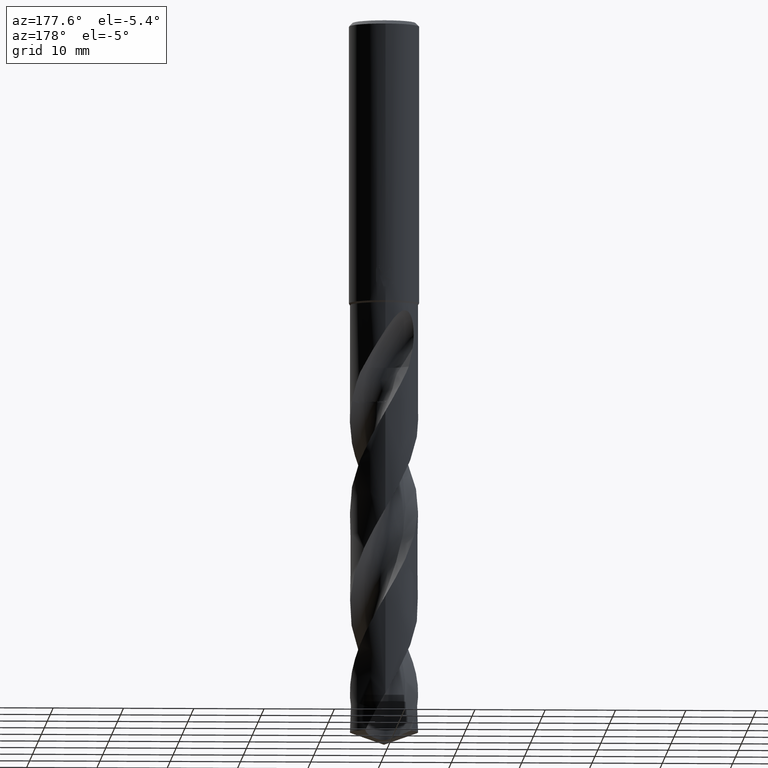
[diagram: clean part render]
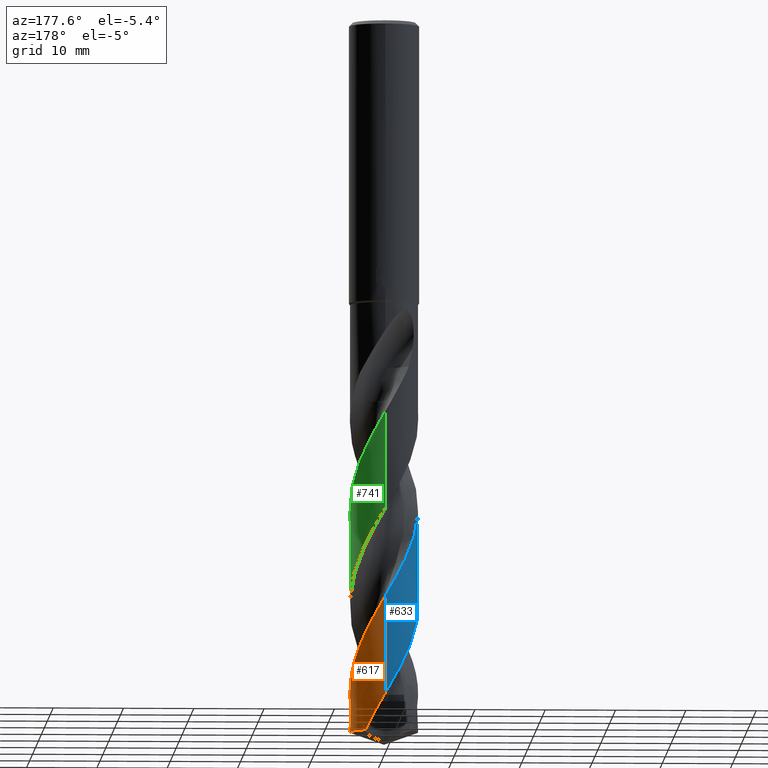
[diagram: same view with three faces highlighted in distinct colors, each labeled with its STEP entity id]
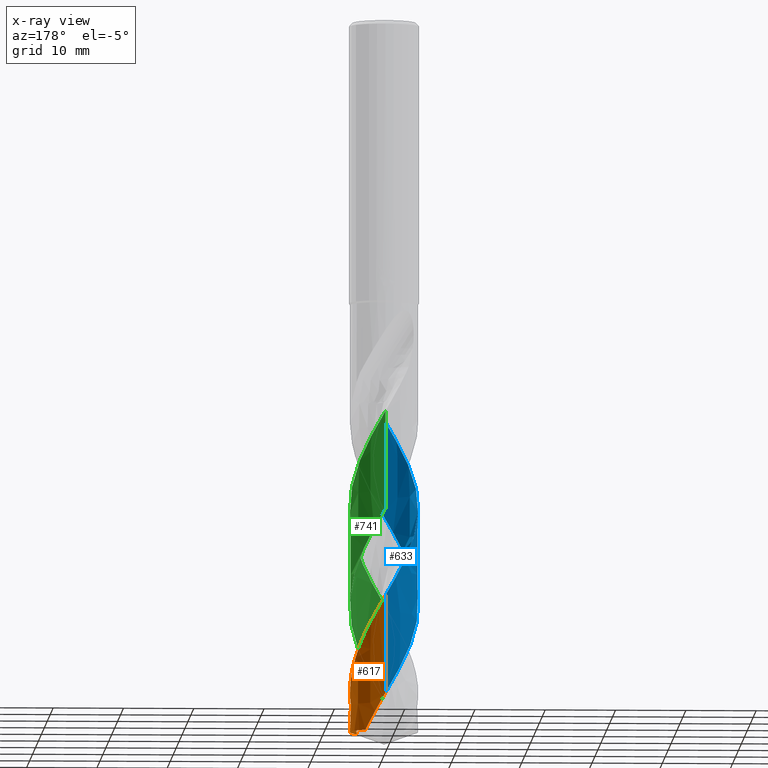
[diagram: x-ray of the same camera — body ghosted, the three highlighted faces saturated]
A machine part, auxiliary view with three faces highlighted in distinct colors.
The next image is the same camera in x-ray (body ghosted, the three faces saturated) — at least one of them is partly hidden behind the body in this view.
Their STEP definitions:

[orange] entity #617 — the highlighted conical surface has half-angle 0 deg.
#333=VERTEX_POINT('',#868);
#375=VERTEX_POINT('',#912);
#415=VERTEX_POINT('',#959);
#453=EDGE_CURVE('',#415,#375,#1000,.T.);
#583=EDGE_CURVE('',#333,#719,#1136,.T.);
#611=EDGE_CURVE('',#415,#719,#1168,.T.);
#617=ADVANCED_FACE('',(#1174),#1175,.T.);
#719=VERTEX_POINT('',#1287);
#747=EDGE_CURVE('',#333,#375,#1318,.T.);
#868=CARTESIAN_POINT('',(2.81639565403702,3.94847002266972,-101.234744363809));
#912=CARTESIAN_POINT('',(-4.22438389633055E-011,4.84998896798814,-96.0348337779357));
#959=CARTESIAN_POINT('',(9.02890968241669E-015,4.84995950986069,-82.1498207074883));
#1000=LINE('',#3824,#3825);
#1136=CIRCLE('',#4508,4.85);
#1168=B_SPLINE_CURVE_WITH_KNOTS('',3,(#5655,#5656,#5657,#5658,#5659,#5660,#5661,#5662,#5663,#5664,#5665,#5666,#5667,#5668,#5669,#5670,#5671,#5672,#5673,#5674,#5675,#5676,#5677,#5678,#5679,#5680,#5681,#5682,#5683,#5684,#5685,#5686,#5687,#5688,#5689,#5690,#5691,#5692,#5693,#5694,#5695,#5696,#5697,#5698,#5699,#5700,#5701,#5702,#5703,#5704,#5705,#5706,#5707,#5708,#5709,#5710,#5711,#5712),.UNSPECIFIED.,.F.,.F.,(4,2,2,2,2,2,2,2,2,2,2,2,2,2,2,2,2,2,2,2,2,2,2,2,2,2,2,2,4),(0.0,0.804699457012868,2.9099783739769,3.85252511230398,7.58469977711884,9.46438191323815,10.4423120611153,13.0076977118181,14.8567328503882,16.7169880908901,18.5787162854258,20.3631703047391,22.2394653848606,25.0924995349375,26.0702612120862,28.9173361934926,30.3576410326398,32.2163794425366,34.0781506706785,35.8468276758426,37.7235162731071,40.6195541438942,41.5968129209044,44.4684979199413,45.6976398581562,47.8792671822312,49.5247748918483,51.9986193993572,54.4864990571889),.UNSPECIFIED.);
#1174=FACE_OUTER_BOUND('',#5776,.T.);
#1175=CONICAL_SURFACE('',#5777,4.84995,2.1215772218423E-006);
#1287=CARTESIAN_POINT('',(3.69460879936409,-3.14203211626829,-101.234744363809));
#1318=B_SPLINE_CURVE_WITH_KNOTS('',3,(#7773,#7774,#7775,#7776,#7777,#7778,#7779,#7780,#7781,#7782,#7783,#7784,#7785,#7786,#7787,#7788,#7789,#7790,#7791,#7792,#7793,#7794,#7795,#7796,#7797,#7798,#7799,#7800,#7801,#7802,#7803,#7804,#7805,#7806,#7807,#7808,#7809,#7810,#7811,#7812,#7813,#7814,#7815,#7816,#7817,#7818,#7819,#7820,#7821,#7822,#7823,#7824,#7825,#7826,#7827,#7828,#7829,#7830,#7831,#7832,#7833,#7834),.UNSPECIFIED.,.F.,.F.,(4,2,2,2,2,2,2,2,2,2,2,2,2,2,2,2,2,2,2,2,2,2,2,2,2,2,2,2,2,2,4),(0.0,2.90040252042436,5.31146055691771,6.47526905272485,8.5128866784917,9.26087245871937,10.0148285591811,13.0785557158901,13.736893573042,17.0515993395195,17.8124811118568,20.3073191612654,22.2416037604404,24.6334862246563,25.9208076803263,28.2766630083023,29.6374965158477,32.5373740538651,33.2572138130432,36.7008802705084,36.9419169666999,38.8834731926337,39.8553155739147,41.7905222195506,43.9978656470067,45.0408242040026,47.431953846322,51.0274304033171,52.8287301608878,53.7280095856256,54.6267656898833),.UNSPECIFIED.);
#3824=CARTESIAN_POINT('',(-5.93926284285672E-016,4.84995,-77.6673721819045));
#3825=VECTOR('',#9005,1.0);
#4508=AXIS2_PLACEMENT_3D('',#9103,#9104,#9105);
#5655=CARTESIAN_POINT('',(0.973760688781259,-4.75113883182464,-54.1033183453056));
#5656=CARTESIAN_POINT('',(0.842143096004037,-4.77811476983193,-54.3354780576872));
#5657=CARTESIAN_POINT('',(0.709573475549135,-4.7995869158995,-54.5677882719101));
#5658=CARTESIAN_POINT('',(0.22798541509764,-4.85723287394112,-55.4075286608783));
#5659=CARTESIAN_POINT('',(-0.124110139322535,-4.86102279185851,-56.0125997366922));
#5660=CARTESIAN_POINT('',(-0.630185983032423,-4.81135976660575,-56.8918333209511));
#5661=CARTESIAN_POINT('',(-0.785837329402314,-4.78839988245622,-57.1636027733615));
#5662=CARTESIAN_POINT('',(-1.55084803265663,-4.63724990016621,-58.5122474762325));
#5663=CARTESIAN_POINT('',(-2.13255996169834,-4.40011556632931,-59.5786820555594));
#5664=CARTESIAN_POINT('',(-2.91574408306515,-3.8882289769869,-61.1979027703113));
#5665=CARTESIAN_POINT('',(-3.16099364904865,-3.69164777069133,-61.7386196263105));
#5666=CARTESIAN_POINT('',(-3.50255164522735,-3.35864345836401,-62.5627602520343));
#5667=CARTESIAN_POINT('',(-3.61353900044728,-3.23892619921296,-62.8444267811034));
#5668=CARTESIAN_POINT('',(-3.99293282133315,-2.78590182593689,-63.8668426327458));
#5669=CARTESIAN_POINT('',(-4.22318940876402,-2.42277777248415,-64.6050423800869));
#5670=CARTESIAN_POINT('',(-4.5322722573044,-1.75373168009519,-65.8785680004982));
#5671=CARTESIAN_POINT('',(-4.63460212514536,-1.4619533193288,-66.4104002369659));
#5672=CARTESIAN_POINT('',(-4.78287352134009,-0.861478063846784,-67.4810238772874));
#5673=CARTESIAN_POINT('',(-4.8282165038114,-0.553707745897449,-68.0168806171681));
#5674=CARTESIAN_POINT('',(-4.85942057728801,0.0668836887325555,-69.0907615821924));
#5675=CARTESIAN_POINT('',(-4.84514573739936,0.377893641040528,-69.6260156451488));
#5676=CARTESIAN_POINT('',(-4.75923603036155,0.97984650996585,-70.678520759985));
#5677=CARTESIAN_POINT('',(-4.69014329642119,1.27010966360982,-71.1928405097308));
#5678=CARTESIAN_POINT('',(-4.4945425040707,1.8490813117531,-72.2492332605275));
#5679=CARTESIAN_POINT('',(-4.36582842647681,2.13527940656401,-72.7884081622611));
#5680=CARTESIAN_POINT('',(-3.97430023005963,2.82017367366307,-74.1536585055644));
#5681=CARTESIAN_POINT('',(-3.67839136380871,3.19663499693879,-74.9733791022129));
#5682=CARTESIAN_POINT('',(-3.21347814605254,3.6362358092541,-76.0788507104359));
#5683=CARTESIAN_POINT('',(-3.08930057992322,3.74230187513151,-76.3607019467755));
#5684=CARTESIAN_POINT('',(-2.58378632908502,4.13179215518447,-77.4650078362355));
#5685=CARTESIAN_POINT('',(-2.16665909870615,4.36506928255377,-78.2833248401307));
#5686=CARTESIAN_POINT('',(-1.49709722641281,4.61937729401627,-79.5207776215113));
#5687=CARTESIAN_POINT('',(-1.26628083724659,4.68789148931261,-79.9359541093838));
#5688=CARTESIAN_POINT('',(-0.728518569420614,4.80494443556928,-80.8886267938473));
#5689=CARTESIAN_POINT('',(-0.41971792427269,4.84172638400698,-81.4243148188636));
#5690=CARTESIAN_POINT('',(0.20154996090706,4.85573805094035,-82.4982831129703));
#5691=CARTESIAN_POINT('',(0.512202643021428,4.8328320647406,-83.0337721772143));
#5692=CARTESIAN_POINT('',(1.10924757666842,4.73062365742642,-84.0822316545322));
#5693=CARTESIAN_POINT('',(1.39511645465551,4.65435995880107,-84.5922762944342));
#5694=CARTESIAN_POINT('',(1.96660783862563,4.44442064987175,-85.6447428418647));
#5695=CARTESIAN_POINT('',(2.24951803649137,4.3081272640476,-86.1842758907692));
#5696=CARTESIAN_POINT('',(2.93037853502509,3.89470346428314,-87.5626973783537));
#5697=CARTESIAN_POINT('',(3.30400222290978,3.58329636671095,-88.3950456533584));
#5698=CARTESIAN_POINT('',(3.73393669096028,3.09945880638787,-89.5133127753923));
#5699=CARTESIAN_POINT('',(3.83610550472734,2.97206471699549,-89.7951656123408));
#5700=CARTESIAN_POINT('',(4.21229393845239,2.45125201962312,-90.9069757524548));
#5701=CARTESIAN_POINT('',(4.43401346040354,2.02291363025788,-91.7326573729752));
#5702=CARTESIAN_POINT('',(4.65570652526173,1.37438213988595,-92.916836272083));
#5703=CARTESIAN_POINT('',(4.70969545425883,1.1760970307982,-93.271384918377));
#5704=CARTESIAN_POINT('',(4.82416956200741,0.618362090485678,-94.2567498151403));
#5705=CARTESIAN_POINT('',(4.85702375693041,0.254269392188052,-94.8852713789114));
#5706=CARTESIAN_POINT('',(4.8424813392847,-0.385240054271573,-95.9904947781041));
#5707=CARTESIAN_POINT('',(4.81286062957932,-0.658932035744062,-96.4642650150632));
#5708=CARTESIAN_POINT('',(4.6812519028219,-1.33370303675622,-97.6546859299841));
#5709=CARTESIAN_POINT('',(4.55071910124487,-1.72754753759026,-98.3674234334515));
#5710=CARTESIAN_POINT('',(4.19152670120661,-2.47518571512211,-99.8006310110955));
#5711=CARTESIAN_POINT('',(3.96397193333056,-2.82529480627715,-100.516018644652));
#5712=CARTESIAN_POINT('',(3.6946087993641,-3.14203211626828,-101.234744363809));
#5776=EDGE_LOOP('',(#9141,#9142,#9143,#9144));
#5777=AXIS2_PLACEMENT_3D('',#9145,#9146,#9147);
#7773=CARTESIAN_POINT('',(2.81639565403702,3.94847002266972,-101.234744363809));
#7774=CARTESIAN_POINT('',(2.42410582274115,4.22828340487573,-100.396581477552));
#7775=CARTESIAN_POINT('',(1.99043369710045,4.44929513643982,-99.5613193881162));
#7776=CARTESIAN_POINT('',(1.14695247246194,4.7296652193613,-98.0283523078907));
#7777=CARTESIAN_POINT('',(0.750487144080871,4.80838575667385,-97.3402969324175));
#7778=CARTESIAN_POINT('',(0.156399001055107,4.85134413008582,-96.3072192957966));
#7779=CARTESIAN_POINT('',(-0.0375289569962217,4.85373890907,-95.9694503529774));
#7780=CARTESIAN_POINT('',(-0.571725461518986,4.82818473332505,-95.0430937898111));
#7781=CARTESIAN_POINT('',(-0.909384862091846,4.77616442034283,-94.4585593148396));
#7782=CARTESIAN_POINT('',(-1.36025462105956,4.65700893629258,-93.6534130651874));
#7783=CARTESIAN_POINT('',(-1.47983027880902,4.62039135394734,-93.4373566050415));
#7784=CARTESIAN_POINT('',(-1.71643406464465,4.53784185409459,-93.0027391622321));
#7785=CARTESIAN_POINT('',(-1.83336998659495,4.49187309995118,-92.7840433637042));
#7786=CARTESIAN_POINT('',(-2.41701242217306,4.23579566919234,-91.6788350406126));
#7787=CARTESIAN_POINT('',(-2.84966179431754,3.95765151814096,-90.8083714265338));
#7788=CARTESIAN_POINT('',(-3.31281010153064,3.54395505358916,-89.731612396755));
#7789=CARTESIAN_POINT('',(-3.39203037622316,3.46819639054372,-89.5407688858622));
#7790=CARTESIAN_POINT('',(-3.85403947658136,2.99545449861757,-88.3928898175447));
#7791=CARTESIAN_POINT('',(-4.16924301471876,2.53843169046767,-87.4559449321611));
#7792=CARTESIAN_POINT('',(-4.45412952597418,1.92326313700343,-86.2797832381133));
#7793=CARTESIAN_POINT('',(-4.50273598967438,1.80654661134171,-86.0596610005366));
#7794=CARTESIAN_POINT('',(-4.6914020356713,1.29827429192672,-85.1194284297162));
#7795=CARTESIAN_POINT('',(-4.78548634937387,0.891463947239216,-84.4079443589689));
#7796=CARTESIAN_POINT('',(-4.85820281254055,0.155711871872415,-83.1307317539359));
#7797=CARTESIAN_POINT('',(-4.85779482102767,-0.167492027810877,-82.5697567340816));
#7798=CARTESIAN_POINT('',(-4.78510465609341,-0.885469721522258,-81.3222445680564));
#7799=CARTESIAN_POINT('',(-4.69610700255195,-1.27564275512526,-80.6401726233273));
#7800=CARTESIAN_POINT('',(-4.48767438316703,-1.85169553083038,-79.5789345817652));
#7801=CARTESIAN_POINT('',(-4.40148528002646,-2.048185683377,-79.2057098615646));
#7802=CARTESIAN_POINT('',(-4.12103998752289,-2.58716345524877,-78.1542551500751));
#7803=CARTESIAN_POINT('',(-3.89803792872502,-2.91233807377969,-77.4819219196533));
#7804=CARTESIAN_POINT('',(-3.48810682371382,-3.37736858452721,-76.4097809613762));
#7805=CARTESIAN_POINT('',(-3.3265767114751,-3.53654966251327,-76.0153492233064));
#7806=CARTESIAN_POINT('',(-2.78784726205653,-3.99785995147025,-74.7867265460997));
#7807=CARTESIAN_POINT('',(-2.37671124876933,-4.25506500700949,-73.9644259903575));
#7808=CARTESIAN_POINT('',(-1.82491839649589,-4.49509845165499,-72.9209017560471));
#7809=CARTESIAN_POINT('',(-1.71369372989443,-4.53866234635191,-72.7129079085925));
#7810=CARTESIAN_POINT('',(-1.06104971926565,-4.76687334595349,-71.5130640359993));
#7811=CARTESIAN_POINT('',(-0.492888576993711,-4.85845623138202,-70.5436253390709));
#7812=CARTESIAN_POINT('',(0.117649824962359,-4.8486699810337,-69.482207565934));
#7813=CARTESIAN_POINT('',(0.157509071912831,-4.8475389999839,-69.4127944686499));
#7814=CARTESIAN_POINT('',(0.519221065909659,-4.83279907990612,-68.7835540258988));
#7815=CARTESIAN_POINT('',(0.839751589783817,-4.7876474014231,-68.2280168402122));
#7816=CARTESIAN_POINT('',(1.31185206928611,-4.67195222674007,-67.3900890125881));
#7817=CARTESIAN_POINT('',(1.46714617122771,-4.62552341306142,-67.1110334316392));
#7818=CARTESIAN_POINT('',(1.923414392101,-4.46386533146779,-66.2743882534047));
#7819=CARTESIAN_POINT('',(2.21540224927989,-4.326392982317,-65.71428963569));
#7820=CARTESIAN_POINT('',(2.80739318371696,-3.97183622442721,-64.5220325523269));
#7821=CARTESIAN_POINT('',(3.10006216018381,-3.74780419764124,-63.8927840475891));
#7822=CARTESIAN_POINT('',(3.48929620532315,-3.37292069926381,-62.9569872702426));
#7823=CARTESIAN_POINT('',(3.60736481542914,-3.24631134412071,-62.6555589721488));
#7824=CARTESIAN_POINT('',(3.97296832580957,-2.80970335149454,-61.6676364123318));
#7825=CARTESIAN_POINT('',(4.18971811410403,-2.47514517450704,-60.9875162092014));
#7826=CARTESIAN_POINT('',(4.62469299358441,-1.57861350694776,-59.2685447249794));
#7827=CARTESIAN_POINT('',(4.78382065558119,-0.996926723445491,-58.2375602045875));
#7828=CARTESIAN_POINT('',(4.858048901366,-0.102933155393004,-56.687197491933));
#7829=CARTESIAN_POINT('',(4.85514162451766,0.197151157487584,-56.1710719001749));
#7830=CARTESIAN_POINT('',(4.80930471273709,0.6438172791246,-55.3951796037721));
#7831=CARTESIAN_POINT('',(4.78719358447541,0.791550642211681,-55.1372698500611));
#7832=CARTESIAN_POINT('',(4.72955666460858,1.08398897221166,-54.6201777137153));
#7833=CARTESIAN_POINT('',(4.69430191510916,1.22757540517741,-54.3618057259967));
#7834=CARTESIAN_POINT('',(4.65253701763839,1.36946318219174,-54.1047560551863));
#9005=DIRECTION('',(-2.59809694599096E-022,2.12157722184071E-006,-0.999999999997749));
#9103=CARTESIAN_POINT('',(0.0,0.0,-101.234744363809));
#9104=DIRECTION('',(0.0,0.0,-1.0));
#9105=DIRECTION('',(0.0,1.0,0.0));
#9141=ORIENTED_EDGE('',*,*,#453,.F.);
#9142=ORIENTED_EDGE('',*,*,#611,.T.);
#9143=ORIENTED_EDGE('',*,*,#583,.F.);
#9144=ORIENTED_EDGE('',*,*,#747,.T.);
#9145=CARTESIAN_POINT('',(0.0,0.0,-77.6673721819045));
#9146=DIRECTION('',(0.0,-0.0,-1.0));
#9147=DIRECTION('',(0.0,1.0,0.0));

[blue] entity #633 — the highlighted conical surface has half-angle 0 deg.
#325=EDGE_CURVE('',#609,#707,#860,.T.);
#375=VERTEX_POINT('',#912);
#415=VERTEX_POINT('',#959);
#453=EDGE_CURVE('',#415,#375,#1000,.T.);
#609=VERTEX_POINT('',#1166);
#633=ADVANCED_FACE('',(#1194),#1195,.T.);
#653=EDGE_CURVE('',#707,#415,#1215,.T.);
#707=VERTEX_POINT('',#1275);
#715=EDGE_CURVE('',#375,#609,#1283,.T.);
#860=LINE('',#1503,#1504);
#912=CARTESIAN_POINT('',(-4.22438389633055E-011,4.84998896798814,-96.0348337779357));
#959=CARTESIAN_POINT('',(9.02890968241669E-015,4.84995950986069,-82.1498207074883));
#1000=LINE('',#3824,#3825);
#1166=CARTESIAN_POINT('',(2.82745840002459E-014,-4.84993306823519,-69.6866281259119));
#1194=FACE_OUTER_BOUND('',#6097,.T.);
#1195=CONICAL_SURFACE('',#6098,4.84995,2.1215772218423E-006);
#1215=B_SPLINE_CURVE_WITH_KNOTS('',3,(#6271,#6272,#6273,#6274,#6275,#6276,#6277,#6278,#6279,#6280,#6281,#6282,#6283,#6284,#6285,#6286,#6287,#6288,#6289,#6290,#6291,#6292,#6293,#6294,#6295,#6296,#6297,#6298,#6299,#6300,#6301,#6302,#6303,#6304,#6305,#6306,#6307,#6308,#6309,#6310,#6311,#6312,#6313,#6314,#6315,#6316,#6317,#6318,#6319,#6320,#6321,#6322,#6323,#6324,#6325,#6326,#6327,#6328),.UNSPECIFIED.,.F.,.F.,(4,2,2,2,2,2,2,2,2,2,2,2,2,2,2,2,2,2,2,2,2,2,2,2,2,2,2,2,4),(0.0,0.804699457012868,2.9099783739769,3.85252511230398,7.58469977711884,9.46438191323815,10.4423120611153,13.0076977118181,14.8567328503882,16.7169880908901,18.5787162854258,20.3631703047391,22.2394653848606,25.0924995349375,26.0702612120862,28.9173361934926,30.3576410326398,32.2163794425366,34.0781506706785,35.8468276758426,37.7235162731071,40.6195541438942,41.5968129209044,44.4684979199413,45.6976398581562,47.8792671822312,49.5247748918483,51.9986193993572,54.4864990571889),.UNSPECIFIED.);
#1275=CARTESIAN_POINT('',(-9.0764423981497E-012,-4.84990360633231,-55.7998355132657));
#1283=B_SPLINE_CURVE_WITH_KNOTS('',3,(#7359,#7360,#7361,#7362,#7363,#7364,#7365,#7366,#7367,#7368,#7369,#7370,#7371,#7372,#7373,#7374,#7375,#7376,#7377,#7378,#7379,#7380,#7381,#7382,#7383,#7384,#7385,#7386,#7387,#7388,#7389,#7390,#7391,#7392,#7393,#7394,#7395,#7396,#7397,#7398,#7399,#7400,#7401,#7402,#7403,#7404,#7405,#7406,#7407,#7408,#7409,#7410,#7411,#7412,#7413,#7414,#7415,#7416,#7417,#7418,#7419,#7420),.UNSPECIFIED.,.F.,.F.,(4,2,2,2,2,2,2,2,2,2,2,2,2,2,2,2,2,2,2,2,2,2,2,2,2,2,2,2,2,2,4),(0.0,2.90040252042436,5.31146055691771,6.47526905272485,8.5128866784917,9.26087245871937,10.0148285591811,13.0785557158901,13.736893573042,17.0515993395195,17.8124811118568,20.3073191612654,22.2416037604404,24.6334862246563,25.9208076803263,28.2766630083023,29.6374965158477,32.5373740538651,33.2572138130432,36.7008802705084,36.9419169666999,38.8834731926337,39.8553155739147,41.7905222195506,43.9978656470067,45.0408242040026,47.431953846322,51.0274304033171,52.8287301608878,53.7280095856256,54.6267656898833),.UNSPECIFIED.);
#1503=CARTESIAN_POINT('',(5.93929632858495E-016,-4.84995,-77.6673721819045));
#1504=VECTOR('',#8871,1.0);
#3824=CARTESIAN_POINT('',(-5.93926284285672E-016,4.84995,-77.6673721819045));
#3825=VECTOR('',#9005,1.0);
#6097=EDGE_LOOP('',(#9180,#9181,#9182,#9183));
#6098=AXIS2_PLACEMENT_3D('',#9184,#9185,#9186);
#6271=CARTESIAN_POINT('',(0.973760688781259,-4.75113883182464,-54.1033183453056));
#6272=CARTESIAN_POINT('',(0.842143096004037,-4.77811476983193,-54.3354780576872));
#6273=CARTESIAN_POINT('',(0.709573475549135,-4.7995869158995,-54.5677882719101));
#6274=CARTESIAN_POINT('',(0.22798541509764,-4.85723287394112,-55.4075286608783));
#6275=CARTESIAN_POINT('',(-0.124110139322535,-4.86102279185851,-56.0125997366922));
#6276=CARTESIAN_POINT('',(-0.630185983032423,-4.81135976660575,-56.8918333209511));
#6277=CARTESIAN_POINT('',(-0.785837329402314,-4.78839988245622,-57.1636027733615));
#6278=CARTESIAN_POINT('',(-1.55084803265663,-4.63724990016621,-58.5122474762325));
#6279=CARTESIAN_POINT('',(-2.13255996169834,-4.40011556632931,-59.5786820555594));
#6280=CARTESIAN_POINT('',(-2.91574408306515,-3.8882289769869,-61.1979027703113));
#6281=CARTESIAN_POINT('',(-3.16099364904865,-3.69164777069133,-61.7386196263105));
#6282=CARTESIAN_POINT('',(-3.50255164522735,-3.35864345836401,-62.5627602520343));
#6283=CARTESIAN_POINT('',(-3.61353900044728,-3.23892619921296,-62.8444267811034));
#6284=CARTESIAN_POINT('',(-3.99293282133315,-2.78590182593689,-63.8668426327458));
#6285=CARTESIAN_POINT('',(-4.22318940876402,-2.42277777248415,-64.6050423800869));
#6286=CARTESIAN_POINT('',(-4.5322722573044,-1.75373168009519,-65.8785680004982));
#6287=CARTESIAN_POINT('',(-4.63460212514536,-1.4619533193288,-66.4104002369659));
#6288=CARTESIAN_POINT('',(-4.78287352134009,-0.861478063846784,-67.4810238772874));
#6289=CARTESIAN_POINT('',(-4.8282165038114,-0.553707745897449,-68.0168806171681));
#6290=CARTESIAN_POINT('',(-4.85942057728801,0.0668836887325555,-69.0907615821924));
#6291=CARTESIAN_POINT('',(-4.84514573739936,0.377893641040528,-69.6260156451488));
#6292=CARTESIAN_POINT('',(-4.75923603036155,0.97984650996585,-70.678520759985));
#6293=CARTESIAN_POINT('',(-4.69014329642119,1.27010966360982,-71.1928405097308));
#6294=CARTESIAN_POINT('',(-4.4945425040707,1.8490813117531,-72.2492332605275));
#6295=CARTESIAN_POINT('',(-4.36582842647681,2.13527940656401,-72.7884081622611));
#6296=CARTESIAN_POINT('',(-3.97430023005963,2.82017367366307,-74.1536585055644));
#6297=CARTESIAN_POINT('',(-3.67839136380871,3.19663499693879,-74.9733791022129));
#6298=CARTESIAN_POINT('',(-3.21347814605254,3.6362358092541,-76.0788507104359));
#6299=CARTESIAN_POINT('',(-3.08930057992322,3.74230187513151,-76.3607019467755));
#6300=CARTESIAN_POINT('',(-2.58378632908502,4.13179215518447,-77.4650078362355));
#6301=CARTESIAN_POINT('',(-2.16665909870615,4.36506928255377,-78.2833248401307));
#6302=CARTESIAN_POINT('',(-1.49709722641281,4.61937729401627,-79.5207776215113));
#6303=CARTESIAN_POINT('',(-1.26628083724659,4.68789148931261,-79.9359541093838));
#6304=CARTESIAN_POINT('',(-0.728518569420614,4.80494443556928,-80.8886267938473));
#6305=CARTESIAN_POINT('',(-0.41971792427269,4.84172638400698,-81.4243148188636));
#6306=CARTESIAN_POINT('',(0.20154996090706,4.85573805094035,-82.4982831129703));
#6307=CARTESIAN_POINT('',(0.512202643021428,4.8328320647406,-83.0337721772143));
#6308=CARTESIAN_POINT('',(1.10924757666842,4.73062365742642,-84.0822316545322));
#6309=CARTESIAN_POINT('',(1.39511645465551,4.65435995880107,-84.5922762944342));
#6310=CARTESIAN_POINT('',(1.96660783862563,4.44442064987175,-85.6447428418647));
#6311=CARTESIAN_POINT('',(2.24951803649137,4.3081272640476,-86.1842758907692));
#6312=CARTESIAN_POINT('',(2.93037853502509,3.89470346428314,-87.5626973783537));
#6313=CARTESIAN_POINT('',(3.30400222290978,3.58329636671095,-88.3950456533584));
#6314=CARTESIAN_POINT('',(3.73393669096028,3.09945880638787,-89.5133127753923));
#6315=CARTESIAN_POINT('',(3.83610550472734,2.97206471699549,-89.7951656123408));
#6316=CARTESIAN_POINT('',(4.21229393845239,2.45125201962312,-90.9069757524548));
#6317=CARTESIAN_POINT('',(4.43401346040354,2.02291363025788,-91.7326573729752));
#6318=CARTESIAN_POINT('',(4.65570652526173,1.37438213988595,-92.916836272083));
#6319=CARTESIAN_POINT('',(4.70969545425883,1.1760970307982,-93.271384918377));
#6320=CARTESIAN_POINT('',(4.82416956200741,0.618362090485678,-94.2567498151403));
#6321=CARTESIAN_POINT('',(4.85702375693041,0.254269392188052,-94.8852713789114));
#6322=CARTESIAN_POINT('',(4.8424813392847,-0.385240054271573,-95.9904947781041));
#6323=CARTESIAN_POINT('',(4.81286062957932,-0.658932035744062,-96.4642650150632));
#6324=CARTESIAN_POINT('',(4.6812519028219,-1.33370303675622,-97.6546859299841));
#6325=CARTESIAN_POINT('',(4.55071910124487,-1.72754753759026,-98.3674234334515));
#6326=CARTESIAN_POINT('',(4.19152670120661,-2.47518571512211,-99.8006310110955));
#6327=CARTESIAN_POINT('',(3.96397193333056,-2.82529480627715,-100.516018644652));
#6328=CARTESIAN_POINT('',(3.6946087993641,-3.14203211626828,-101.234744363809));
#7359=CARTESIAN_POINT('',(2.81639565403702,3.94847002266972,-101.234744363809));
#7360=CARTESIAN_POINT('',(2.42410582274115,4.22828340487573,-100.396581477552));
#7361=CARTESIAN_POINT('',(1.99043369710045,4.44929513643982,-99.5613193881162));
#7362=CARTESIAN_POINT('',(1.14695247246194,4.7296652193613,-98.0283523078907));
#7363=CARTESIAN_POINT('',(0.750487144080871,4.80838575667385,-97.3402969324175));
#7364=CARTESIAN_POINT('',(0.156399001055107,4.85134413008582,-96.3072192957966));
#7365=CARTESIAN_POINT('',(-0.0375289569962217,4.85373890907,-95.9694503529774));
#7366=CARTESIAN_POINT('',(-0.571725461518986,4.82818473332505,-95.0430937898111));
#7367=CARTESIAN_POINT('',(-0.909384862091846,4.77616442034283,-94.4585593148396));
#7368=CARTESIAN_POINT('',(-1.36025462105956,4.65700893629258,-93.6534130651874));
#7369=CARTESIAN_POINT('',(-1.47983027880902,4.62039135394734,-93.4373566050415));
#7370=CARTESIAN_POINT('',(-1.71643406464465,4.53784185409459,-93.0027391622321));
#7371=CARTESIAN_POINT('',(-1.83336998659495,4.49187309995118,-92.7840433637042));
#7372=CARTESIAN_POINT('',(-2.41701242217306,4.23579566919234,-91.6788350406126));
#7373=CARTESIAN_POINT('',(-2.84966179431754,3.95765151814096,-90.8083714265338));
#7374=CARTESIAN_POINT('',(-3.31281010153064,3.54395505358916,-89.731612396755));
#7375=CARTESIAN_POINT('',(-3.39203037622316,3.46819639054372,-89.5407688858622));
#7376=CARTESIAN_POINT('',(-3.85403947658136,2.99545449861757,-88.3928898175447));
#7377=CARTESIAN_POINT('',(-4.16924301471876,2.53843169046767,-87.4559449321611));
#7378=CARTESIAN_POINT('',(-4.45412952597418,1.92326313700343,-86.2797832381133));
#7379=CARTESIAN_POINT('',(-4.50273598967438,1.80654661134171,-86.0596610005366));
#7380=CARTESIAN_POINT('',(-4.6914020356713,1.29827429192672,-85.1194284297162));
#7381=CARTESIAN_POINT('',(-4.78548634937387,0.891463947239216,-84.4079443589689));
#7382=CARTESIAN_POINT('',(-4.85820281254055,0.155711871872415,-83.1307317539359));
#7383=CARTESIAN_POINT('',(-4.85779482102767,-0.167492027810877,-82.5697567340816));
#7384=CARTESIAN_POINT('',(-4.78510465609341,-0.885469721522258,-81.3222445680564));
#7385=CARTESIAN_POINT('',(-4.69610700255195,-1.27564275512526,-80.6401726233273));
#7386=CARTESIAN_POINT('',(-4.48767438316703,-1.85169553083038,-79.5789345817652));
#7387=CARTESIAN_POINT('',(-4.40148528002646,-2.048185683377,-79.2057098615646));
#7388=CARTESIAN_POINT('',(-4.12103998752289,-2.58716345524877,-78.1542551500751));
#7389=CARTESIAN_POINT('',(-3.89803792872502,-2.91233807377969,-77.4819219196533));
#7390=CARTESIAN_POINT('',(-3.48810682371382,-3.37736858452721,-76.4097809613762));
#7391=CARTESIAN_POINT('',(-3.3265767114751,-3.53654966251327,-76.0153492233064));
#7392=CARTESIAN_POINT('',(-2.78784726205653,-3.99785995147025,-74.7867265460997));
#7393=CARTESIAN_POINT('',(-2.37671124876933,-4.25506500700949,-73.9644259903575));
#7394=CARTESIAN_POINT('',(-1.82491839649589,-4.49509845165499,-72.9209017560471));
#7395=CARTESIAN_POINT('',(-1.71369372989443,-4.53866234635191,-72.7129079085925));
#7396=CARTESIAN_POINT('',(-1.06104971926565,-4.76687334595349,-71.5130640359993));
#7397=CARTESIAN_POINT('',(-0.492888576993711,-4.85845623138202,-70.5436253390709));
#7398=CARTESIAN_POINT('',(0.117649824962359,-4.8486699810337,-69.482207565934));
#7399=CARTESIAN_POINT('',(0.157509071912831,-4.8475389999839,-69.4127944686499));
#7400=CARTESIAN_POINT('',(0.519221065909659,-4.83279907990612,-68.7835540258988));
#7401=CARTESIAN_POINT('',(0.839751589783817,-4.7876474014231,-68.2280168402122));
#7402=CARTESIAN_POINT('',(1.31185206928611,-4.67195222674007,-67.3900890125881));
#7403=CARTESIAN_POINT('',(1.46714617122771,-4.62552341306142,-67.1110334316392));
#7404=CARTESIAN_POINT('',(1.923414392101,-4.46386533146779,-66.2743882534047));
#7405=CARTESIAN_POINT('',(2.21540224927989,-4.326392982317,-65.71428963569));
#7406=CARTESIAN_POINT('',(2.80739318371696,-3.97183622442721,-64.5220325523269));
#7407=CARTESIAN_POINT('',(3.10006216018381,-3.74780419764124,-63.8927840475891));
#7408=CARTESIAN_POINT('',(3.48929620532315,-3.37292069926381,-62.9569872702426));
#7409=CARTESIAN_POINT('',(3.60736481542914,-3.24631134412071,-62.6555589721488));
#7410=CARTESIAN_POINT('',(3.97296832580957,-2.80970335149454,-61.6676364123318));
#7411=CARTESIAN_POINT('',(4.18971811410403,-2.47514517450704,-60.9875162092014));
#7412=CARTESIAN_POINT('',(4.62469299358441,-1.57861350694776,-59.2685447249794));
#7413=CARTESIAN_POINT('',(4.78382065558119,-0.996926723445491,-58.2375602045875));
#7414=CARTESIAN_POINT('',(4.858048901366,-0.102933155393004,-56.687197491933));
#7415=CARTESIAN_POINT('',(4.85514162451766,0.197151157487584,-56.1710719001749));
#7416=CARTESIAN_POINT('',(4.80930471273709,0.6438172791246,-55.3951796037721));
#7417=CARTESIAN_POINT('',(4.78719358447541,0.791550642211681,-55.1372698500611));
#7418=CARTESIAN_POINT('',(4.72955666460858,1.08398897221166,-54.6201777137153));
#7419=CARTESIAN_POINT('',(4.69430191510916,1.22757540517741,-54.3618057259967));
#7420=CARTESIAN_POINT('',(4.65253701763839,1.36946318219174,-54.1047560551863));
#8871=DIRECTION('',(-2.59809694599096E-022,2.12157722184071E-006,0.999999999997749));
#9005=DIRECTION('',(-2.59809694599096E-022,2.12157722184071E-006,-0.999999999997749));
#9180=ORIENTED_EDGE('',*,*,#453,.T.);
#9181=ORIENTED_EDGE('',*,*,#715,.T.);
#9182=ORIENTED_EDGE('',*,*,#325,.T.);
#9183=ORIENTED_EDGE('',*,*,#653,.T.);
#9184=CARTESIAN_POINT('',(0.0,0.0,-77.6673721819045));
#9185=DIRECTION('',(0.0,-0.0,-1.0));
#9186=DIRECTION('',(0.0,1.0,0.0));

[green] entity #741 — the highlighted conical surface has half-angle 0 deg.
#321=VERTEX_POINT('',#856);
#385=EDGE_CURVE('',#783,#321,#924,.T.);
#461=VERTEX_POINT('',#1009);
#543=VERTEX_POINT('',#1093);
#621=EDGE_CURVE('',#783,#543,#1180,.T.);
#721=EDGE_CURVE('',#461,#321,#1289,.T.);
#741=ADVANCED_FACE('',(#1310),#1311,.T.);
#771=EDGE_CURVE('',#461,#543,#1345,.T.);
#783=VERTEX_POINT('',#1358);
#856=CARTESIAN_POINT('',(4.36354647035595E-011,4.8499330682352,-69.6866281260634));
#924=LINE('',#1722,#1723);
#1009=CARTESIAN_POINT('',(4.22367335326298E-011,-4.84998896798814,-96.0348337779358));
#1093=CARTESIAN_POINT('',(1.18513882603113E-015,-4.84995950986069,-82.1498207074883));
#1180=B_SPLINE_CURVE_WITH_KNOTS('',3,(#6006,#6007,#6008,#6009,#6010,#6011,#6012,#6013,#6014,#6015,#6016,#6017,#6018,#6019,#6020,#6021,#6022,#6023,#6024,#6025,#6026,#6027,#6028,#6029,#6030,#6031,#6032,#6033,#6034,#6035,#6036,#6037,#6038,#6039,#6040,#6041,#6042,#6043,#6044,#6045,#6046,#6047,#6048,#6049,#6050,#6051,#6052,#6053,#6054,#6055,#6056,#6057,#6058,#6059,#6060,#6061,#6062,#6063,#6064,#6065,#6066,#6067,#6068,#6069),.UNSPECIFIED.,.F.,.F.,(4,2,2,2,2,2,2,2,2,2,2,2,2,2,2,2,2,2,2,2,2,2,2,2,2,2,2,2,2,2,2,4),(0.0,0.804699456453581,2.90997828137342,5.97117969343787,6.34791472279569,8.88406288573882,10.7465998996312,12.3708515779157,13.3124440673693,14.8388805282699,16.6984555061955,18.5605323713383,20.3300824705302,22.2071878032519,25.0592786041671,26.4754222640707,29.3352963593358,29.4576923850704,31.5868984182849,32.5286875926038,34.2158804719521,36.0737666887174,37.9352974176716,39.696385678096,40.6352984061239,41.612362175008,44.5535174836263,45.1632102904913,47.4671845659358,48.3412694014716,49.1009918617864,54.4896086452032),.UNSPECIFIED.);
#1289=B_SPLINE_CURVE_WITH_KNOTS('',3,(#7427,#7428,#7429,#7430,#7431,#7432,#7433,#7434,#7435,#7436,#7437,#7438,#7439,#7440,#7441,#7442,#7443,#7444,#7445,#7446,#7447,#7448,#7449,#7450,#7451,#7452,#7453,#7454,#7455,#7456,#7457,#7458,#7459,#7460,#7461,#7462,#7463,#7464,#7465,#7466,#7467,#7468,#7469,#7470,#7471,#7472,#7473,#7474,#7475,#7476,#7477,#7478,#7479,#7480,#7481,#7482,#7483,#7484,#7485,#7486,#7487,#7488,#7489,#7490),.UNSPECIFIED.,.F.,.F.,(4,2,2,2,2,2,2,2,2,2,2,2,2,2,2,2,2,2,2,2,2,2,2,2,2,2,2,2,2,2,2,4),(0.0,2.90040252042433,5.31146055749715,6.4752690541531,8.67665573470539,10.6455657625195,12.5808202965891,14.75894081664,16.7986885552817,18.0013665914325,20.9247176862017,21.6850119691423,24.3547028853505,26.3002489646326,28.2930419338794,29.6358586611768,32.5888893443668,33.303199384776,35.7198816290192,37.7644214149336,39.2155617115759,39.9027196998456,40.9685792460521,43.3013281196985,46.0613184511586,48.1470624397346,48.5360977661885,50.0008722066698,50.5496956160714,52.4749068375857,53.436250394599,54.3971949387849),.UNSPECIFIED.);
#1310=FACE_OUTER_BOUND('',#7762,.T.);
#1311=CONICAL_SURFACE('',#7763,4.84995,2.1215772218423E-006);
#1345=LINE('',#8541,#8542);
#1358=CARTESIAN_POINT('',(9.07200150273309E-012,4.84990360633229,-55.7998355132657));
#1722=CARTESIAN_POINT('',(-5.93936269065743E-016,4.84995,-77.6673721819045));
#1723=VECTOR('',#8923,1.0);
#6006=CARTESIAN_POINT('',(-0.973760688781259,4.75113883182464,-54.1033183453056));
#6007=CARTESIAN_POINT('',(-0.842143096095514,4.77811476981318,-54.3354780575259));
#6008=CARTESIAN_POINT('',(-0.709573475733742,4.79958691586967,-54.5677882715868));
#6009=CARTESIAN_POINT('',(-0.227985430605653,4.85723287210514,-55.4075286338412));
#6010=CARTESIAN_POINT('',(0.124110108313205,4.86102279154123,-56.0125996834132));
#6011=CARTESIAN_POINT('',(0.98197769759711,4.77683719741281,-57.5030205442017));
#6012=CARTESIAN_POINT('',(1.47925502801444,4.64697188801321,-58.381244481047));
#6013=CARTESIAN_POINT('',(2.00466645098365,4.4166619549681,-59.3729653351155));
#6014=CARTESIAN_POINT('',(2.06172901098981,4.39031473531839,-59.4815974764374));
#6015=CARTESIAN_POINT('',(2.49883062171279,4.1780949715978,-60.3220948677279));
#6016=CARTESIAN_POINT('',(2.85380352098322,3.94420664045177,-61.052193181528));
#6017=CARTESIAN_POINT('',(3.40908552908813,3.46360094471259,-62.3213063013996));
#6018=CARTESIAN_POINT('',(3.6239413319878,3.2380915203968,-62.8567027714073));
#6019=CARTESIAN_POINT('',(3.98287326009424,2.78061541232705,-63.8632193830528));
#6020=CARTESIAN_POINT('',(4.13200064448287,2.55378231806665,-64.3316087595889));
#6021=CARTESIAN_POINT('',(4.33646981494896,2.17749477857228,-65.0721163631815));
#6022=CARTESIAN_POINT('',(4.40477015742887,2.03580184277444,-65.3436074838562));
#6023=CARTESIAN_POINT('',(4.56547919996839,1.65624923774043,-66.0557347273784));
#6024=CARTESIAN_POINT('',(4.64614278694006,1.41419651661162,-66.4954450954024));
#6025=CARTESIAN_POINT('',(4.78203937185998,0.86607731591987,-67.4729477802548));
#6026=CARTESIAN_POINT('',(4.82767196058644,0.558404724485475,-68.0087214370157));
#6027=CARTESIAN_POINT('',(4.85949001002151,-0.062216977675119,-69.0827172532713));
#6028=CARTESIAN_POINT('',(4.84550497577405,-0.373358663074155,-69.6181594764815));
#6029=CARTESIAN_POINT('',(4.76046777612877,-0.973105691352606,-70.6666660206885));
#6030=CARTESIAN_POINT('',(4.69241923836963,-1.2611021972556,-71.1768151412973));
#6031=CARTESIAN_POINT('',(4.49892906589599,-1.83841516872768,-72.2293536349057));
#6032=CARTESIAN_POINT('',(4.37080868214781,-2.12509617964669,-72.7688462360048));
#6033=CARTESIAN_POINT('',(3.98077781712788,-2.81101349310472,-74.1343113356125));
#6034=CARTESIAN_POINT('',(3.68577300488533,-3.18811178251189,-74.9539930955188));
#6035=CARTESIAN_POINT('',(3.16880783787443,-3.67921337196619,-76.1859463590207));
#6036=CARTESIAN_POINT('',(2.98571749161293,-3.82926842919902,-76.5942146354394));
#6037=CARTESIAN_POINT('',(2.4024921024921,-4.24000838201137,-77.8290306859874));
#6038=CARTESIAN_POINT('',(1.97376292826128,-4.45583675248171,-78.6497638662722));
#6039=CARTESIAN_POINT('',(1.50073239829828,-4.6119706370802,-79.5105411463506));
#6040=CARTESIAN_POINT('',(1.48128168955278,-4.61825466358446,-79.5458629329739));
#6041=CARTESIAN_POINT('',(1.12269809463837,-4.73160525640187,-80.1959043181719));
#6042=CARTESIAN_POINT('',(0.77289542905686,-4.80115982937332,-80.810304305529));
#6043=CARTESIAN_POINT('',(0.261977863513311,-4.84543081858579,-81.6972036535873));
#6044=CARTESIAN_POINT('',(0.104674258917275,-4.85138273958891,-81.9689481789604));
#6045=CARTESIAN_POINT('',(-0.334615230134149,-4.84661127002923,-82.7280167228279));
#6046=CARTESIAN_POINT('',(-0.615537999879563,-4.81897512781582,-83.2140370900722));
#6047=CARTESIAN_POINT('',(-1.19705657004126,-4.71013139477198,-84.2381365866392));
#6048=CARTESIAN_POINT('',(-1.49583327337387,-4.62396051398059,-84.7737840195562));
#6049=CARTESIAN_POINT('',(-2.07370716513415,-4.39530057657842,-85.8478373339799));
#6050=CARTESIAN_POINT('',(-2.3510761401086,-4.25337228300795,-86.3834527142664));
#6051=CARTESIAN_POINT('',(-2.86048402218148,-3.92762657413325,-87.4300335915408));
#6052=CARTESIAN_POINT('',(-3.0933463753312,-3.74700039555455,-87.9380835999645));
#6053=CARTESIAN_POINT('',(-3.42319923594106,-3.43926712163853,-88.7178960098841));
#6054=CARTESIAN_POINT('',(-3.53266661836403,-3.32673158232027,-88.9888107054988));
#6055=CARTESIAN_POINT('',(-3.74456332079133,-3.08661230331784,-89.5421020685759));
#6056=CARTESIAN_POINT('',(-3.84629491969563,-2.95886616892023,-89.8239922917623));
#6057=CARTESIAN_POINT('',(-4.22749872559172,-2.42727209476374,-90.9560670883096));
#6058=CARTESIAN_POINT('',(-4.45159415044467,-1.98679033007921,-91.8014870466697));
#6059=CARTESIAN_POINT('',(-4.63761103047288,-1.42312266927419,-92.8270509594777));
#6060=CARTESIAN_POINT('',(-4.66647927668935,-1.32539678451766,-93.0030204661886));
#6061=CARTESIAN_POINT('',(-4.78961345040781,-0.854462322879423,-93.844857889214));
#6062=CARTESIAN_POINT('',(-4.84234019604378,-0.471641011025589,-94.5094717318035));
#6063=CARTESIAN_POINT('',(-4.85182292343547,0.0595461115269632,-95.4276880620047));
#6064=CARTESIAN_POINT('',(-4.8478277695551,0.2057066803331,-95.6800185443131));
#6065=CARTESIAN_POINT('',(-4.82802939730097,0.478190952272817,-96.1520127265858));
#6066=CARTESIAN_POINT('',(-4.81385562750712,0.60440299529763,-96.3712550039693));
#6067=CARTESIAN_POINT('',(-4.65928117659326,1.61986565659225,-98.1484775867079));
#6068=CARTESIAN_POINT('',(-4.27840125108969,2.4555653083208,-99.6770454926735));
#6069=CARTESIAN_POINT('',(-3.6946087993641,3.14203211626828,-101.234744363809));
#7427=CARTESIAN_POINT('',(-2.81639565403702,-3.94847002266972,-101.234744363809));
#7428=CARTESIAN_POINT('',(-2.42410582274116,-4.22828340487573,-100.396581477552));
#7429=CARTESIAN_POINT('',(-1.99043369710045,-4.44929513643982,-99.5613193881162));
#7430=CARTESIAN_POINT('',(-1.14695247236991,-4.72966521939189,-98.0283523077234));
#7431=CARTESIAN_POINT('',(-0.750487143889424,-4.80838575671137,-97.3402969320853));
#7432=CARTESIAN_POINT('',(-0.156399000631382,-4.85134413010504,-96.3072192950594));
#7433=CARTESIAN_POINT('',(0.0375289575621934,-4.85373890907151,-95.9694503519954));
#7434=CARTESIAN_POINT('',(0.599052301368121,-4.82687750856598,-94.9957059891985));
#7435=CARTESIAN_POINT('',(0.963419362745459,-4.76758325160429,-94.3650627746003));
#7436=CARTESIAN_POINT('',(1.63492999229971,-4.57797604350332,-93.1595323842533));
#7437=CARTESIAN_POINT('',(1.94167015509522,-4.45653993673789,-92.5872709987873));
#7438=CARTESIAN_POINT('',(2.52142981198584,-4.15566141384218,-91.4586711334341));
#7439=CARTESIAN_POINT('',(2.79309173498358,-3.97815264938797,-90.9034554394952));
#7440=CARTESIAN_POINT('',(3.32858207479249,-3.54619851673564,-89.7145441331095));
#7441=CARTESIAN_POINT('',(3.58537949866606,-3.28637718157888,-89.0813935724889));
#7442=CARTESIAN_POINT('',(4.02214430652764,-2.73151843141926,-87.8623047105812));
#7443=CARTESIAN_POINT('',(4.20418146603416,-2.44194665050461,-87.2775339230565));
#7444=CARTESIAN_POINT('',(4.44267072555981,-1.95581423466135,-86.3397523780513));
#7445=CARTESIAN_POINT('',(4.51973619656765,-1.77046137352444,-85.990450467907));
#7446=CARTESIAN_POINT('',(4.74434646436398,-1.11884419549322,-84.7968736313116));
#7447=CARTESIAN_POINT('',(4.83266656600226,-0.636365629640148,-83.9655518444562));
#7448=CARTESIAN_POINT('',(4.85156422899588,-0.0225935808301774,-82.8999015667512));
#7449=CARTESIAN_POINT('',(4.85050707475147,0.104064232824463,-82.6794050235301));
#7450=CARTESIAN_POINT('',(4.8232239303736,0.676380571226371,-81.6859276165177));
#7451=CARTESIAN_POINT('',(4.74066464403594,1.1169565196578,-80.9237616754879));
#7452=CARTESIAN_POINT('',(4.49547330883205,1.84896668449828,-79.5885744504537));
#7453=CARTESIAN_POINT('',(4.36132877989862,2.14641966711993,-79.0224874286277));
#7454=CARTESIAN_POINT('',(4.03089691162196,2.71760492852529,-77.8829380661307));
#7455=CARTESIAN_POINT('',(3.83442057614353,2.98836864994378,-77.3108194547218));
#7456=CARTESIAN_POINT('',(3.46205658815341,3.40391053821918,-76.3453251484922));
#7457=CARTESIAN_POINT('',(3.30100712077545,3.56029558066494,-75.9548144392801));
#7458=CARTESIAN_POINT('',(2.75248114472994,4.02360708718391,-74.7115155515885));
#7459=CARTESIAN_POINT('',(2.3295649745578,4.2822291608935,-73.8716393803905));
#7460=CARTESIAN_POINT('',(1.76567159518394,4.51868379688101,-72.810052176274));
#7461=CARTESIAN_POINT('',(1.65423755552281,4.56066694920247,-72.6027898966544));
#7462=CARTESIAN_POINT('',(1.15768805047303,4.72705369765893,-71.6947676083829));
#7463=CARTESIAN_POINT('',(0.759501995463794,4.80720475858604,-71.0022289688838));
#7464=CARTESIAN_POINT('',(0.0135182373499217,4.86201398516744,-69.7102892421074));
#7465=CARTESIAN_POINT('',(-0.329595956051641,4.85083529517765,-69.1147973393787));
#7466=CARTESIAN_POINT('',(-0.90981826149563,4.77003035981298,-68.1024637230547));
#7467=CARTESIAN_POINT('',(-1.14795782899191,4.71839946608946,-67.6840659805004));
#7468=CARTESIAN_POINT('',(-1.49189711319274,4.61620349386445,-67.0651691031262));
#7469=CARTESIAN_POINT('',(-1.60108714216359,4.57946989999759,-66.8664047619205));
#7470=CARTESIAN_POINT('',(-1.87572421672101,4.47607821404483,-66.3586160073391));
#7471=CARTESIAN_POINT('',(-2.03873310406459,4.40419858316428,-66.0486861927634));
#7472=CARTESIAN_POINT('',(-2.54421830170521,4.14730974349365,-65.0652037523039));
#7473=CARTESIAN_POINT('',(-2.86914584220948,3.92964974890002,-64.3976637667045));
#7474=CARTESIAN_POINT('',(-3.51493191961692,3.37347084653305,-62.9263441376533));
#7475=CARTESIAN_POINT('',(-3.81999419653899,3.02374655586787,-62.1248674276389));
#7476=CARTESIAN_POINT('',(-4.26107226286516,2.34242913327083,-60.725241609759));
#7477=CARTESIAN_POINT('',(-4.41826675405035,2.03015777840372,-60.1277382665809));
#7478=CARTESIAN_POINT('',(-4.5633040654101,1.64380771711781,-59.4119141645855));
#7479=CARTESIAN_POINT('',(-4.5848660872353,1.58267382877016,-59.2992806562151));
#7480=CARTESIAN_POINT('',(-4.68190505680341,1.28886196644472,-58.7625933826118));
#7481=CARTESIAN_POINT('',(-4.74097898830397,1.05105656124122,-58.3404257065435));
#7482=CARTESIAN_POINT('',(-4.79717889670398,0.719097271736582,-57.7579102135472));
#7483=CARTESIAN_POINT('',(-4.80992816521659,0.628190012925675,-57.5990124909081));
#7484=CARTESIAN_POINT('',(-4.85574832266699,0.216851307081744,-56.8832508375526));
#7485=CARTESIAN_POINT('',(-4.85944311687564,-0.106124710085491,-56.3283608563384));
#7486=CARTESIAN_POINT('',(-4.81687961362285,-0.587477591470273,-55.493336772947));
#7487=CARTESIAN_POINT('',(-4.79475127775018,-0.746780465780921,-55.2158467610929));
#7488=CARTESIAN_POINT('',(-4.73488838853714,-1.06212993023568,-54.6593020864443));
#7489=CARTESIAN_POINT('',(-4.69745570823673,-1.21686103202837,-54.3812163204034));
#7490=CARTESIAN_POINT('',(-4.65253701763839,-1.36946318219174,-54.1047560551863));
#7762=EDGE_LOOP('',(#9280,#9281,#9282,#9283));
#7763=AXIS2_PLACEMENT_3D('',#9284,#9285,#9286);
#8541=CARTESIAN_POINT('',(5.93919648078425E-016,-4.84995,-77.6673721819045));
#8542=VECTOR('',#9332,1.0);
#8923=DIRECTION('',(-2.59809694599096E-022,2.12157722184071E-006,-0.999999999997749));
#9280=ORIENTED_EDGE('',*,*,#385,.F.);
#9281=ORIENTED_EDGE('',*,*,#621,.T.);
#9282=ORIENTED_EDGE('',*,*,#771,.F.);
#9283=ORIENTED_EDGE('',*,*,#721,.T.);
#9284=CARTESIAN_POINT('',(0.0,0.0,-77.6673721819045));
#9285=DIRECTION('',(0.0,-0.0,-1.0));
#9286=DIRECTION('',(0.0,1.0,0.0));
#9332=DIRECTION('',(-2.59809694599096E-022,2.12157722184071E-006,0.999999999997749));